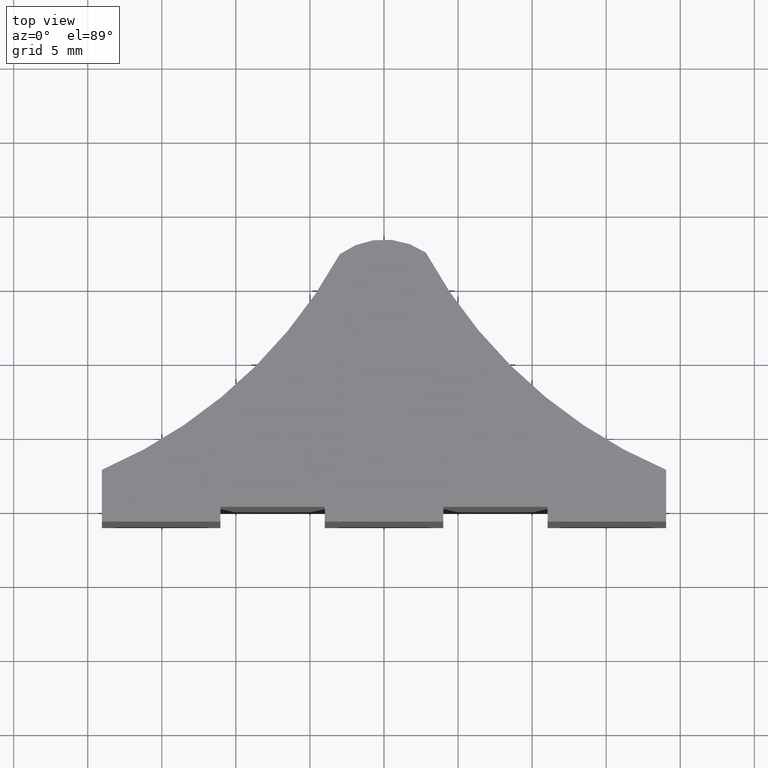
[diagram: clean part render]
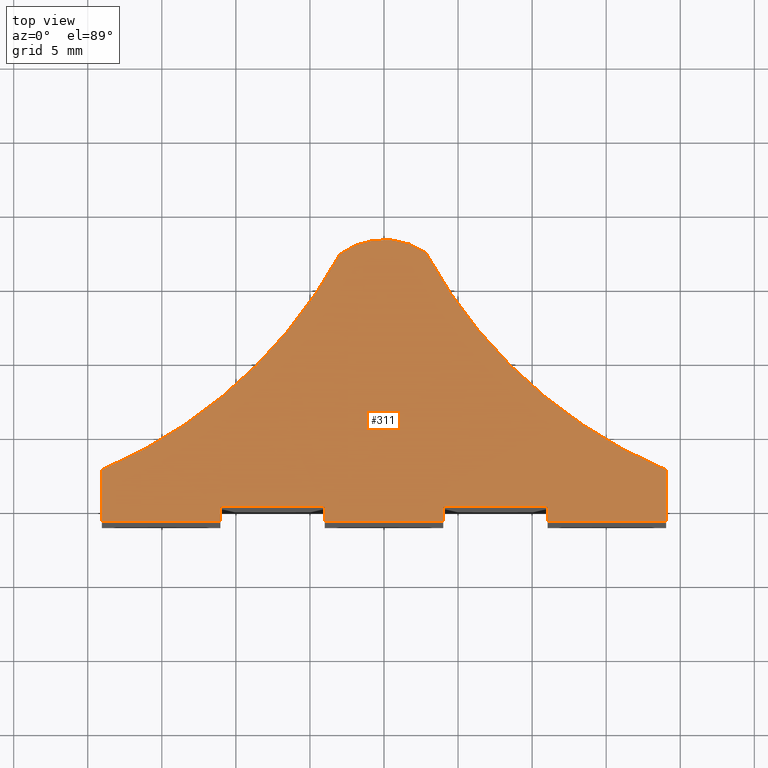
[diagram: same view with one face highlighted and labeled with its STEP entity id]
A machine part, top view. The second image highlights one B-rep face of the part: STEP entity #311.
In plain terms, the highlighted planar face has unit normal (0, 0, 1).
Its self-contained STEP definition (entity closure, byte-faithful):
#34=FACE_OUTER_BOUND('',#50,.T.);
#50=EDGE_LOOP('',(#269,#270,#271,#272,#273,#274,#275,#276,#277,#278,#279,
#280,#281,#282));
#54=CIRCLE('',#349,33.2);
#55=CIRCLE('',#351,5.);
#56=CIRCLE('',#353,33.2);
#68=LINE('',#472,#104);
#71=LINE('',#477,#107);
#73=LINE('',#481,#109);
#75=LINE('',#485,#111);
#77=LINE('',#489,#113);
#79=LINE('',#493,#115);
#81=LINE('',#497,#117);
#83=LINE('',#501,#119);
#85=LINE('',#505,#121);
#90=LINE('',#521,#126);
#92=LINE('',#524,#128);
#104=VECTOR('',#380,10.);
#107=VECTOR('',#385,10.);
#109=VECTOR('',#389,10.);
#111=VECTOR('',#393,10.);
#113=VECTOR('',#397,10.);
#115=VECTOR('',#401,10.);
#117=VECTOR('',#405,10.);
#119=VECTOR('',#409,10.);
#121=VECTOR('',#413,10.);
#126=VECTOR('',#432,10.);
#128=VECTOR('',#436,10.);
#143=VERTEX_POINT('',#470);
#144=VERTEX_POINT('',#471);
#145=VERTEX_POINT('',#476);
#146=VERTEX_POINT('',#480);
#147=VERTEX_POINT('',#484);
#148=VERTEX_POINT('',#488);
#149=VERTEX_POINT('',#492);
#150=VERTEX_POINT('',#496);
#151=VERTEX_POINT('',#500);
#152=VERTEX_POINT('',#504);
#153=VERTEX_POINT('',#508);
#154=VERTEX_POINT('',#512);
#155=VERTEX_POINT('',#516);
#156=VERTEX_POINT('',#520);
#171=EDGE_CURVE('',#143,#144,#68,.T.);
#174=EDGE_CURVE('',#144,#145,#71,.T.);
#176=EDGE_CURVE('',#145,#146,#73,.T.);
#178=EDGE_CURVE('',#146,#147,#75,.T.);
#180=EDGE_CURVE('',#147,#148,#77,.T.);
#182=EDGE_CURVE('',#148,#149,#79,.T.);
#184=EDGE_CURVE('',#149,#150,#81,.T.);
#186=EDGE_CURVE('',#150,#151,#83,.T.);
#188=EDGE_CURVE('',#151,#152,#85,.T.);
#190=EDGE_CURVE('',#152,#153,#54,.T.);
#192=EDGE_CURVE('',#153,#154,#55,.T.);
#194=EDGE_CURVE('',#154,#155,#56,.T.);
#196=EDGE_CURVE('',#155,#156,#90,.T.);
#198=EDGE_CURVE('',#156,#143,#92,.T.);
#269=ORIENTED_EDGE('',*,*,#171,.F.);
#270=ORIENTED_EDGE('',*,*,#198,.F.);
#271=ORIENTED_EDGE('',*,*,#196,.F.);
#272=ORIENTED_EDGE('',*,*,#194,.F.);
#273=ORIENTED_EDGE('',*,*,#192,.F.);
#274=ORIENTED_EDGE('',*,*,#190,.F.);
#275=ORIENTED_EDGE('',*,*,#188,.F.);
#276=ORIENTED_EDGE('',*,*,#186,.F.);
#277=ORIENTED_EDGE('',*,*,#184,.F.);
#278=ORIENTED_EDGE('',*,*,#182,.F.);
#279=ORIENTED_EDGE('',*,*,#180,.F.);
#280=ORIENTED_EDGE('',*,*,#178,.F.);
#281=ORIENTED_EDGE('',*,*,#176,.F.);
#282=ORIENTED_EDGE('',*,*,#174,.F.);
#295=PLANE('',#356);
#311=ADVANCED_FACE('',(#34),#295,.T.);
#349=AXIS2_PLACEMENT_3D('',#509,#417,#418);
#351=AXIS2_PLACEMENT_3D('',#513,#422,#423);
#353=AXIS2_PLACEMENT_3D('',#517,#427,#428);
#356=AXIS2_PLACEMENT_3D('',#525,#437,#438);
#380=DIRECTION('',(0.,1.,0.));
#385=DIRECTION('',(-1.,8.61210236300542E-17,0.));
#389=DIRECTION('',(0.,-1.,0.));
#393=DIRECTION('',(-1.,0.,0.));
#397=DIRECTION('',(0.,1.,0.));
#401=DIRECTION('',(-1.,-8.61210236300542E-17,0.));
#405=DIRECTION('',(0.,-1.,0.));
#409=DIRECTION('',(-1.,0.,0.));
#413=DIRECTION('',(0.,1.,0.));
#417=DIRECTION('center_axis',(0.,0.,1.));
#418=DIRECTION('ref_axis',(0.392774549218538,-0.919634793538269,0.));
#422=DIRECTION('center_axis',(0.,0.,-1.));
#423=DIRECTION('ref_axis',(-0.562151423304266,-0.827034326540917,0.));
#427=DIRECTION('center_axis',(0.,0.,1.));
#428=DIRECTION('ref_axis',(-0.877780937248784,-0.479062236251874,0.));
#432=DIRECTION('',(6.34413156928661E-16,-1.,0.));
#436=DIRECTION('',(-1.,0.,0.));
#437=DIRECTION('center_axis',(0.,0.,1.));
#438=DIRECTION('ref_axis',(1.,0.,0.));
#470=CARTESIAN_POINT('',(11.05,-1.,12.5));
#471=CARTESIAN_POINT('',(11.05,0.,12.5));
#472=CARTESIAN_POINT('',(11.05,-1.,12.5));
#476=CARTESIAN_POINT('',(4.,6.07153216591882E-16,12.5));
#477=CARTESIAN_POINT('',(11.05,0.,12.5));
#480=CARTESIAN_POINT('',(4.,-0.999999999999995,12.5));
#481=CARTESIAN_POINT('',(4.,6.07153216591882E-16,12.5));
#484=CARTESIAN_POINT('',(-4.,-0.999999999999995,12.5));
#485=CARTESIAN_POINT('',(4.,-0.999999999999995,12.5));
#488=CARTESIAN_POINT('',(-4.,6.07153216591882E-16,12.5));
#489=CARTESIAN_POINT('',(-4.,-0.999999999999995,12.5));
#492=CARTESIAN_POINT('',(-11.05,0.,12.5));
#493=CARTESIAN_POINT('',(-4.,6.07153216591882E-16,12.5));
#496=CARTESIAN_POINT('',(-11.05,-1.,12.5));
#497=CARTESIAN_POINT('',(-11.05,0.,12.5));
#500=CARTESIAN_POINT('',(-19.05,-1.,12.5));
#501=CARTESIAN_POINT('',(-11.05,-1.,12.5));
#504=CARTESIAN_POINT('',(-19.05,2.5,12.5));
#505=CARTESIAN_POINT('',(-19.05,-1.,12.5));
#508=CARTESIAN_POINT('',(-2.98296810637382,17.0627174428754,12.5));
#509=CARTESIAN_POINT('Origin',(-32.0901150340555,33.0318751454705,12.5));
#512=CARTESIAN_POINT('',(2.81075711652133,17.1851716327046,12.5));
#513=CARTESIAN_POINT('Origin',(0.,13.05,12.5));
#516=CARTESIAN_POINT('',(19.05,2.5,12.5));
#517=CARTESIAN_POINT('Origin',(31.953084233181,33.0900378762668,12.5));
#520=CARTESIAN_POINT('',(19.05,-1.,12.5));
#521=CARTESIAN_POINT('',(19.05,2.5,12.5));
#524=CARTESIAN_POINT('',(19.05,-1.,12.5));
#525=CARTESIAN_POINT('Origin',(-0.00548119044075153,4.89485500603167,12.5));